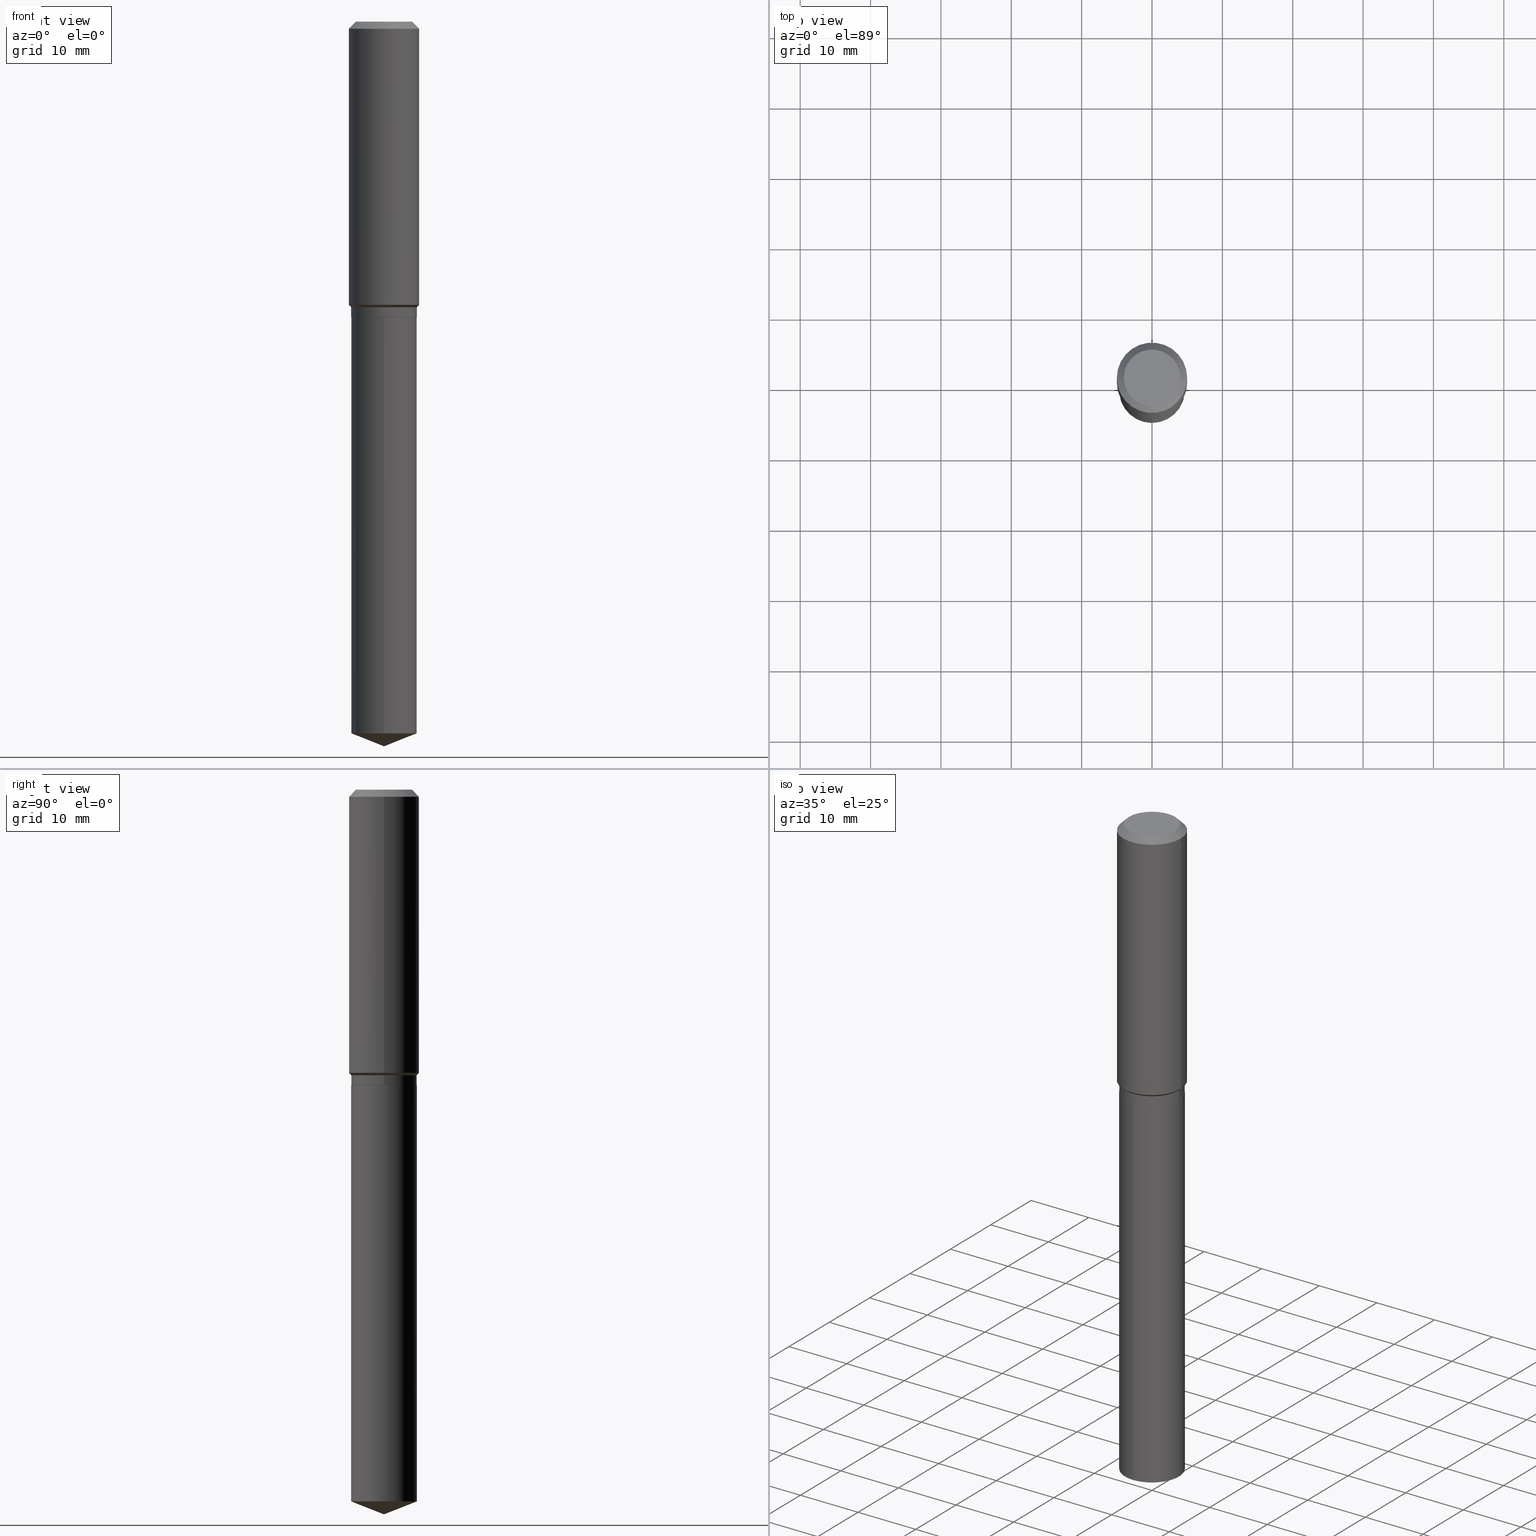
[diagram: canonical four-view strip — front | top / right | iso, engineering-drawing reading convention]
A machine part, canonical four-view strip (front | top / right | iso — engineering-drawing reading convention). The complete STEP part file that produces these views, byte-faithful:
ISO-10303-21;
HEADER;
FILE_DESCRIPTION (( 'STEP AP203' ),
    '1' );
FILE_NAME ('56456.STEP',
    '2024-04-24T18:03:00',
    ( '' ),
    ( '' ),
    'SwSTEP 2.0',
    'SolidWorks 2023',
    '' );
FILE_SCHEMA (( 'CONFIG_CONTROL_DESIGN' ));
ENDSEC;

DATA;
#1 = EDGE_CURVE ( 'NONE', #282, #129, #23, .T. ) ;
#2 = DIRECTION ( 'NONE',  ( -2.445540233102860963E-29, 3.491379051431596489E-15, 1.000000000000000000 ) ) ;
#3 = DATE_AND_TIME ( #38, #218 ) ;
#4 = ORIENTED_EDGE ( 'NONE', *, *, #40, .T. ) ;
#5 = CALENDAR_DATE ( 2024, 24, 4 ) ;
#6 = DIRECTION ( 'NONE',  ( 0.7071067811864267805, -2.468850131080992517E-15, 0.7071067811866682540 ) ) ;
#7 = ADVANCED_FACE ( 'NONE', ( #436 ), #93, .T. ) ;
#8 = APPROVAL_PERSON_ORGANIZATION ( #270, #70, #416 ) ;
#9 = AXIS2_PLACEMENT_3D ( 'NONE', #470, #204, #89 ) ;
#10 = DIRECTION ( 'NONE',  ( 1.000000000000000000, -6.982962677686265922E-15, 4.876176775795935793E-29 ) ) ;
#11 = ORIENTED_EDGE ( 'NONE', *, *, #63, .F. ) ;
#12 = LINE ( 'NONE', #229, #51 ) ;
#13 = APPLICATION_CONTEXT ( 'configuration controlled 3d designs of mechanical parts and assemblies' ) ;
#14 = DIRECTION ( 'NONE',  ( -2.445468806185136597E-29, 3.491481338843145583E-15, 1.000000000000000000 ) ) ;
#15 = COORDINATED_UNIVERSAL_TIME_OFFSET ( 5, 0, .BEHIND. ) ;
#16 = CC_DESIGN_DATE_AND_TIME_ASSIGNMENT ( #152, #299, ( #172 ) ) ;
#17 = DIRECTION ( 'NONE',  ( -6.982962677686265133E-15, -1.000000000000000000, 2.969399993113329585E-15 ) ) ;
#18 = ORIENTED_EDGE ( 'NONE', *, *, #304, .F. ) ;
#19 = CARTESIAN_POINT ( 'NONE',  ( 3.875945784363131396E-29, -5.533823347999442283E-15, -1.584949999999999637 ) ) ;
#20 = VERTEX_POINT ( 'NONE', #406 ) ;
#21 = LINE ( 'NONE', #207, #214 ) ;
#22 = ADVANCED_FACE ( 'NONE', ( #294 ), #368, .T. ) ;
#23 = LINE ( 'NONE', #134, #401 ) ;
#24 =( GEOMETRIC_REPRESENTATION_CONTEXT ( 3 ) GLOBAL_UNCERTAINTY_ASSIGNED_CONTEXT ( ( #250 ) ) GLOBAL_UNIT_ASSIGNED_CONTEXT ( ( #255, #222, #61 ) ) REPRESENTATION_CONTEXT ( 'NONE', 'WORKASPACE' ) );
#25 = CIRCLE ( 'NONE', #354, 0.1839999999999999969 ) ;
#26 = DIRECTION ( 'NONE',  ( 1.000000000000000000, -6.982962677686264344E-15, 0.000000000000000000 ) ) ;
#27 = EDGE_LOOP ( 'NONE', ( #205, #427 ) ) ;
#28 = CARTESIAN_POINT ( 'NONE',  ( 0.1574800000000000089, -1.284169937930321189E-15, 3.855188123724205385E-18 ) ) ;
#29 = EDGE_CURVE ( 'NONE', #346, #282, #453, .T. ) ;
#30 = ORIENTED_EDGE ( 'NONE', *, *, #452, .F. ) ;
#31 = LINE ( 'NONE', #489, #67 ) ;
#32 = CIRCLE ( 'NONE', #450, 0.1968500000000002192 ) ;
#33 = CARTESIAN_POINT ( 'NONE',  ( 0.1834999999999999964, -7.054188896998686144E-15, -1.653399999999999981 ) ) ;
#34 = DIRECTION ( 'NONE',  ( 1.000000000000000000, -6.982962677686264344E-15, 0.000000000000000000 ) ) ;
#35 = ADVANCED_FACE ( 'NONE', ( #256 ), #227, .T. ) ;
#36 = PRODUCT_RELATED_PRODUCT_CATEGORY ( 'detail', '', ( #197 ) ) ;
#37 = CARTESIAN_POINT ( 'NONE',  ( -0.1968500000000000250, -1.436938108811090750E-15, -0.03937000000000029365 ) ) ;
#38 = CALENDAR_DATE ( 2024, 24, 4 ) ;
#39 = DIRECTION ( 'NONE',  ( 6.611014441532057911E-15, 0.9304175679820259059, 0.3665012267242938049 ) ) ;
#40 = EDGE_CURVE ( 'NONE', #112, #20, #411, .T. ) ;
#41 = PERSON_AND_ORGANIZATION ( #402, #474 ) ;
#42 = DIRECTION ( 'NONE',  ( -6.982962677686265133E-15, -1.000000000000000000, 2.969399993113329585E-15 ) ) ;
#43 = ORIENTED_EDGE ( 'NONE', *, *, #331, .T. ) ;
#44 = PERSON_AND_ORGANIZATION ( #402, #474 ) ;
#45 = PLANE ( 'NONE',  #370 ) ;
#46 = ORIENTED_EDGE ( 'NONE', *, *, #261, .F. ) ;
#47 = AXIS2_PLACEMENT_3D ( 'NONE', #286, #167, #390 ) ;
#48 = DIRECTION ( 'NONE',  ( -2.445468806185136597E-29, 3.491481338843145583E-15, 1.000000000000000000 ) ) ;
#49 = CYLINDRICAL_SURFACE ( 'NONE', #9, 0.1839999999999999969 ) ;
#50 = AXIS2_PLACEMENT_3D ( 'NONE', #147, #64, #144 ) ;
#51 = VECTOR ( 'NONE', #296, 39.37007874015748143 ) ;
#52 = DIRECTION ( 'NONE',  ( -2.445540233102860963E-29, 3.491379051431596489E-15, 1.000000000000000000 ) ) ;
#53 = VERTEX_POINT ( 'NONE', #187 ) ;
#54 = ADVANCED_FACE ( 'NONE', ( #253 ), #487, .T. ) ;
#55 = CARTESIAN_POINT ( 'NONE',  ( 1.307398633798681744E-15, 0.1839999999999941960, -1.653400000000000203 ) ) ;
#56 = ORIENTED_EDGE ( 'NONE', *, *, #146, .T. ) ;
#57 = CARTESIAN_POINT ( 'NONE',  ( 4.042115389743411055E-29, -5.771069504973833690E-15, -1.652899999999999814 ) ) ;
#58 = CARTESIAN_POINT ( 'NONE',  ( 3.907370058522611013E-29, -5.578688883203577685E-15, -1.597799999999999887 ) ) ;
#59 = EDGE_LOOP ( 'NONE', ( #84, #190, #236 ) ) ;
#60 = DESIGN_CONTEXT ( 'detailed design', #306, 'design' ) ;
#61 =( NAMED_UNIT ( * ) SI_UNIT ( $, .STERADIAN. ) SOLID_ANGLE_UNIT ( ) );
#62 = ORIENTED_EDGE ( 'NONE', *, *, #137, .T. ) ;
#63 = EDGE_CURVE ( 'NONE', #419, #100, #105, .T. ) ;
#64 = DIRECTION ( 'NONE',  ( -2.445468806185136597E-29, 3.491481338843145583E-15, 1.000000000000000000 ) ) ;
#65 = CARTESIAN_POINT ( 'NONE',  ( -1.284865132694232346E-15, -0.1840000000000057701, -1.653399999999999093 ) ) ;
#66 = CIRCLE ( 'NONE', #342, 0.1574800000000000089 ) ;
#67 = VECTOR ( 'NONE', #71, 39.37007874015748143 ) ;
#68 = FACE_OUTER_BOUND ( 'NONE', #216, .T. ) ;
#69 = AXIS2_PLACEMENT_3D ( 'NONE', #386, #153, #42 ) ;
#70 = APPROVAL ( #267, 'UNSPECIFIED' ) ;
#71 = DIRECTION ( 'NONE',  ( 0.7071067811865503483, -2.468850131082286248E-15, 0.7071067811865446862 ) ) ;
#72 = ORIENTED_EDGE ( 'NONE', *, *, #198, .F. ) ;
#73 = CALENDAR_DATE ( 2024, 24, 4 ) ;
#74 = CARTESIAN_POINT ( 'NONE',  ( 9.627810689950954155E-31, -1.374596203102556547E-16, -0.03937000000000029365 ) ) ;
#75 = CIRCLE ( 'NONE', #69, 0.1839999999999999969 ) ;
#76 = APPROVAL_DATE_TIME ( #420, #477 ) ;
#77 = DIRECTION ( 'NONE',  ( -2.445468806185136597E-29, 3.491481338843145583E-15, 1.000000000000000000 ) ) ;
#78 = PERSON_AND_ORGANIZATION_ROLE ( 'creator' ) ;
#79 = DIRECTION ( 'NONE',  ( -6.982962677686265922E-15, -1.000000000000000000, 3.498627837350040510E-15 ) ) ;
#80 = AXIS2_PLACEMENT_3D ( 'NONE', #347, #14, #466 ) ;
#81 = ADVANCED_FACE ( 'NONE', ( #68 ), #332, .F. ) ;
#82 = VERTEX_POINT ( 'NONE', #417 ) ;
#83 = CARTESIAN_POINT ( 'NONE',  ( -0.1839999999999999969, -4.271290249404992971E-15, -1.597799999999999887 ) ) ;
#84 = ORIENTED_EDGE ( 'NONE', *, *, #297, .F. ) ;
#85 = CARTESIAN_POINT ( 'NONE',  ( 3.875945784363131396E-29, -5.533823347999442283E-15, -1.584949999999999637 ) ) ;
#86 = ORIENTED_EDGE ( 'NONE', *, *, #137, .F. ) ;
#87 = ADVANCED_FACE ( 'NONE', ( #142 ), #384, .T. ) ;
#88 = AXIS2_PLACEMENT_3D ( 'NONE', #189, #2, #79 ) ;
#89 = DIRECTION ( 'NONE',  ( 1.000000000000000000, -6.982962677686267499E-15, 4.876176775795935793E-29 ) ) ;
#90 = ORIENTED_EDGE ( 'NONE', *, *, #235, .F. ) ;
#91 = ORIENTED_EDGE ( 'NONE', *, *, #307, .T. ) ;
#92 = CARTESIAN_POINT ( 'NONE',  ( 9.627810689950954155E-31, -1.374596203102556547E-16, -0.03937000000000029365 ) ) ;
#93 = CYLINDRICAL_SURFACE ( 'NONE', #258, 0.1839999999999999969 ) ;
#94 = LINE ( 'NONE', #170, #96 ) ;
#95 = VECTOR ( 'NONE', #217, 39.37007874015748143 ) ;
#96 = VECTOR ( 'NONE', #394, 39.37007874015748143 ) ;
#97 = DIRECTION ( 'NONE',  ( -2.445468806185136597E-29, 3.491481338843145583E-15, 1.000000000000000000 ) ) ;
#98 = ORIENTED_EDGE ( 'NONE', *, *, #244, .F. ) ;
#99 = APPROVAL ( #196, 'UNSPECIFIED' ) ;
#100 = VERTEX_POINT ( 'NONE', #221 ) ;
#101 = DIRECTION ( 'NONE',  ( 1.000000000000000000, -6.982962677686265922E-15, 0.000000000000000000 ) ) ;
#102 = DIRECTION ( 'NONE',  ( -2.445468806185136597E-29, 3.491481338843145583E-15, 1.000000000000000000 ) ) ;
#103 = EDGE_LOOP ( 'NONE', ( #90, #454, #56, #441 ) ) ;
#104 = DIRECTION ( 'NONE',  ( -2.445468806185136597E-29, 3.491481338843145583E-15, 1.000000000000000000 ) ) ;
#105 = LINE ( 'NONE', #183, #95 ) ;
#106 = ADVANCED_FACE ( 'NONE', ( #414 ), #225, .T. ) ;
#107 = VECTOR ( 'NONE', #6, 39.37007874015748143 ) ;
#108 = DIRECTION ( 'NONE',  ( 1.000000000000000000, -6.982962677686265922E-15, 4.876223630392693006E-29 ) ) ;
#109 = CARTESIAN_POINT ( 'NONE',  ( -9.427742298522567634E-47, 1.346031739168368355E-32, 3.855188123715870730E-18 ) ) ;
#110 = VERTEX_POINT ( 'NONE', #33 ) ;
#111 = CARTESIAN_POINT ( 'NONE',  ( 4.042115389743411055E-29, -5.771069504973833690E-15, -1.652899999999999814 ) ) ;
#112 = VERTEX_POINT ( 'NONE', #140 ) ;
#113 = PERSON_AND_ORGANIZATION ( #402, #474 ) ;
#114 = APPLICATION_PROTOCOL_DEFINITION ( 'international standard', 'config_control_design', 1994, #306 ) ;
#115 = LINE ( 'NONE', #379, #107 ) ;
#116 = ORIENTED_EDGE ( 'NONE', *, *, #415, .T. ) ;
#117 = ADVANCED_FACE ( 'NONE', ( #143 ), #292, .T. ) ;
#118 = EDGE_CURVE ( 'NONE', #200, #251, #31, .T. ) ;
#119 = DIRECTION ( 'NONE',  ( -2.445468806185136597E-29, 3.491481338843145583E-15, 1.000000000000000000 ) ) ;
#120 = ORIENTED_EDGE ( 'NONE', *, *, #405, .F. ) ;
#121 = CLOSED_SHELL ( 'NONE', ( #22, #392, #117, #444, #348, #387, #429, #54, #106, #314, #275, #212 ) ) ;
#122 = CONICAL_SURFACE ( 'NONE', #309, 0.1968500000000000250, 0.7853981633974447263 ) ;
#123 = FACE_OUTER_BOUND ( 'NONE', #27, .T. ) ;
#124 = DATE_TIME_ROLE ( 'creation_date' ) ;
#125 = DIRECTION ( 'NONE',  ( -2.445468806185136877E-29, 3.491481338843145188E-15, 1.000000000000000000 ) ) ;
#126 = VERTEX_POINT ( 'NONE', #37 ) ;
#127 = FACE_OUTER_BOUND ( 'NONE', #103, .T. ) ;
#128 = DATE_AND_TIME ( #408, #374 ) ;
#129 = VERTEX_POINT ( 'NONE', #65 ) ;
#130 = AXIS2_PLACEMENT_3D ( 'NONE', #265, #102, #372 ) ;
#131 = AXIS2_PLACEMENT_3D ( 'NONE', #164, #245, #399 ) ;
#132 = CIRCLE ( 'NONE', #161, 0.1834999999999999964 ) ;
#133 = DIRECTION ( 'NONE',  ( 1.000000000000000000, -6.982962677686267499E-15, 4.876176775795935793E-29 ) ) ;
#134 = CARTESIAN_POINT ( 'NONE',  ( -1.284865132694232346E-15, -0.1840000000000057701, -1.653399999999999093 ) ) ;
#135 = DIRECTION ( 'NONE',  ( -2.445468806185136597E-29, 3.491481338843145583E-15, 1.000000000000000000 ) ) ;
#136 = ORIENTED_EDGE ( 'NONE', *, *, #364, .F. ) ;
#137 = EDGE_CURVE ( 'NONE', #359, #419, #66, .T. ) ;
#138 = DIRECTION ( 'NONE',  ( -2.445468806185136597E-29, 3.491481338843145583E-15, 1.000000000000000000 ) ) ;
#139 = CIRCLE ( 'NONE', #206, 0.1968500000000000250 ) ;
#140 = CARTESIAN_POINT ( 'NONE',  ( 0.1839999999999999969, -7.055934637668106859E-15, -1.652899999999999814 ) ) ;
#141 = ORIENTED_EDGE ( 'NONE', *, *, #252, .F. ) ;
#142 = FACE_OUTER_BOUND ( 'NONE', #59, .T. ) ;
#143 = FACE_OUTER_BOUND ( 'NONE', #319, .T. ) ;
#144 = DIRECTION ( 'NONE',  ( 1.000000000000000000, -6.982962677686265922E-15, 0.000000000000000000 ) ) ;
#145 = CARTESIAN_POINT ( 'NONE',  ( 0.1839999999999999969, -1.284865132694273169E-15, 8.972165267464521691E-30 ) ) ;
#146 = EDGE_CURVE ( 'NONE', #112, #200, #260, .T. ) ;
#147 = CARTESIAN_POINT ( 'NONE',  ( 9.627810689950954155E-31, -1.374596203102556547E-16, -0.03937000000000029365 ) ) ;
#148 = DIRECTION ( 'NONE',  ( -6.982962677686265133E-15, -1.000000000000000000, 2.969399993113329585E-15 ) ) ;
#149 = PERSON_AND_ORGANIZATION ( #402, #474 ) ;
#150 = CARTESIAN_POINT ( 'NONE',  ( 9.627810689950954155E-31, -1.374596203102556547E-16, -0.03937000000000029365 ) ) ;
#151 = ORIENTED_EDGE ( 'NONE', *, *, #176, .F. ) ;
#152 = DATE_AND_TIME ( #5, #360 ) ;
#153 = DIRECTION ( 'NONE',  ( -2.445540233102860963E-29, 3.491379051431596489E-15, 1.000000000000000000 ) ) ;
#154 = AXIS2_PLACEMENT_3D ( 'NONE', #74, #326, #482 ) ;
#155 = AXIS2_PLACEMENT_3D ( 'NONE', #19, #97, #280 ) ;
#156 = CARTESIAN_POINT ( 'NONE',  ( -1.284865132694176140E-15, -0.1840000000000139302, -3.982520472486849705 ) ) ;
#157 = ADVANCED_FACE ( 'NONE', ( #224 ), #219, .T. ) ;
#158 = DIRECTION ( 'NONE',  ( 1.000000000000000000, -6.982962677686264344E-15, 0.000000000000000000 ) ) ;
#159 = CC_DESIGN_SECURITY_CLASSIFICATION ( #172, ( #257 ) ) ;
#160 = EDGE_LOOP ( 'NONE', ( #141, #284, #432, #72 ) ) ;
#161 = AXIS2_PLACEMENT_3D ( 'NONE', #193, #77, #350 ) ;
#162 = COORDINATED_UNIVERSAL_TIME_OFFSET ( 5, 0, .BEHIND. ) ;
#163 = EDGE_CURVE ( 'NONE', #282, #263, #75, .T. ) ;
#164 = CARTESIAN_POINT ( 'NONE',  ( 9.739295947356642418E-29, -1.390465767154430748E-14, -3.982520472486850593 ) ) ;
#165 = EDGE_LOOP ( 'NONE', ( #380, #116, #186, #362 ) ) ;
#166 = MANIFOLD_SOLID_BREP ( 'Body-Move/Copy2[2]', #121 ) ;
#167 = DIRECTION ( 'NONE',  ( -2.445468806185136597E-29, 3.491481338843145583E-15, 1.000000000000000000 ) ) ;
#168 = ORIENTED_EDGE ( 'NONE', *, *, #118, .F. ) ;
#169 = EDGE_LOOP ( 'NONE', ( #4, #303, #151, #298 ) ) ;
#170 = CARTESIAN_POINT ( 'NONE',  ( 0.1968500000000001082, -1.374596203102542397E-15, 9.598753983154305062E-30 ) ) ;
#171 = ORIENTED_EDGE ( 'NONE', *, *, #182, .T. ) ;
#172 = SECURITY_CLASSIFICATION ( '', '', #228 ) ;
#173 = AXIS2_PLACEMENT_3D ( 'NONE', #209, #138, #133 ) ;
#174 = DIRECTION ( 'NONE',  ( 2.438088387897960049E-29, -3.491481338843145188E-15, -1.000000000000000000 ) ) ;
#175 = EDGE_LOOP ( 'NONE', ( #46, #366, #315, #30 ) ) ;
#176 = EDGE_CURVE ( 'NONE', #200, #82, #25, .T. ) ;
#177 = DIRECTION ( 'NONE',  ( -2.445468806185136597E-29, 3.491481338843145583E-15, 1.000000000000000000 ) ) ;
#178 = DIRECTION ( 'NONE',  ( 6.982962677686265922E-15, 1.000000000000000000, -3.491379051431596884E-15 ) ) ;
#179 = CC_DESIGN_APPROVAL ( #70, ( #418 ) ) ;
#180 = AXIS2_PLACEMENT_3D ( 'NONE', #111, #443, #34 ) ;
#181 = AXIS2_PLACEMENT_3D ( 'NONE', #430, #135, #317 ) ;
#182 = EDGE_CURVE ( 'NONE', #110, #112, #115, .T. ) ;
#183 = CARTESIAN_POINT ( 'NONE',  ( 0.1968500000000000250, -1.487948651171581601E-15, -0.03937000000000029365 ) ) ;
#184 = APPLICATION_PROTOCOL_DEFINITION ( 'international standard', 'config_control_design', 1994, #13 ) ;
#185 = DIRECTION ( 'NONE',  ( -2.445468806185136597E-29, 3.491481338843145583E-15, 1.000000000000000000 ) ) ;
#186 = ORIENTED_EDGE ( 'NONE', *, *, #1, .T. ) ;
#187 = CARTESIAN_POINT ( 'NONE',  ( -0.1834999999999999964, -4.466320098349360965E-15, -1.653399999999999981 ) ) ;
#188 = CIRCLE ( 'NONE', #425, 0.1574800000000000089 ) ;
#189 = CARTESIAN_POINT ( 'NONE',  ( -8.636456399151639523E-28, 1.232981569910369115E-13, 35.31507874015748172 ) ) ;
#190 = ORIENTED_EDGE ( 'NONE', *, *, #29, .T. ) ;
#191 = CC_DESIGN_PERSON_AND_ORGANIZATION_ASSIGNMENT ( #376, #78, ( #418 ) ) ;
#192 = CC_DESIGN_PERSON_AND_ORGANIZATION_ASSIGNMENT ( #340, #456, ( #257 ) ) ;
#193 = CARTESIAN_POINT ( 'NONE',  ( 4.043338124146504977E-29, -5.772815245643255982E-15, -1.653399999999999981 ) ) ;
#194 = COORDINATED_UNIVERSAL_TIME_OFFSET ( 5, 0, .BEHIND. ) ;
#195 = APPROVAL_PERSON_ORGANIZATION ( #149, #477, #310 ) ;
#196 = APPROVAL_STATUS ( 'not_yet_approved' ) ;
#197 = PRODUCT ( '56456', '56456', '', ( #338 ) ) ;
#198 = EDGE_CURVE ( 'NONE', #359, #126, #201, .T. ) ;
#199 = AXIS2_PLACEMENT_3D ( 'NONE', #247, #177, #400 ) ;
#200 = VERTEX_POINT ( 'NONE', #271 ) ;
#201 = LINE ( 'NONE', #237, #268 ) ;
#202 = FACE_OUTER_BOUND ( 'NONE', #403, .T. ) ;
#203 = EDGE_CURVE ( 'NONE', #110, #53, #132, .T. ) ;
#204 = DIRECTION ( 'NONE',  ( -2.445468806185136597E-29, 3.491481338843145583E-15, 1.000000000000000000 ) ) ;
#205 = ORIENTED_EDGE ( 'NONE', *, *, #203, .F. ) ;
#206 = AXIS2_PLACEMENT_3D ( 'NONE', #150, #463, #320 ) ;
#207 = CARTESIAN_POINT ( 'NONE',  ( 1.307398633798624552E-15, 0.1839999999999942237, -1.653400000000000203 ) ) ;
#208 = EDGE_LOOP ( 'NONE', ( #232, #481, #355 ) ) ;
#209 = CARTESIAN_POINT ( 'NONE',  ( 0.000000000000000000, 0.000000000000000000, 0.000000000000000000 ) ) ;
#210 = ORIENTED_EDGE ( 'NONE', *, *, #163, .T. ) ;
#211 = CARTESIAN_POINT ( 'NONE',  ( -4.713871149261283817E-47, 6.730158695841841775E-33, 1.927594061857935365E-18 ) ) ;
#212 = ADVANCED_FACE ( 'NONE', ( #202 ), #465, .T. ) ;
#213 = ORIENTED_EDGE ( 'NONE', *, *, #261, .T. ) ;
#214 = VECTOR ( 'NONE', #239, 39.37007874015748143 ) ;
#215 = DIRECTION ( 'NONE',  ( -2.445468806185136597E-29, 3.491481338843145583E-15, 1.000000000000000000 ) ) ;
#216 = EDGE_LOOP ( 'NONE', ( #321, #254 ) ) ;
#217 = DIRECTION ( 'NONE',  ( 0.7071067811865450192, -7.319954787623246579E-15, -0.7071067811865500152 ) ) ;
#218 = LOCAL_TIME ( 14, 3, 0.000000000000000000, #276 ) ;
#219 = CONICAL_SURFACE ( 'NONE', #88, 99.94676754583893796, 1.195550537616115960 ) ;
#220 = LENGTH_MEASURE_WITH_UNIT ( LENGTH_MEASURE( 0.02539999999999999897 ), #486 );
#221 = CARTESIAN_POINT ( 'NONE',  ( 0.1968500000000000250, -1.512055823412797189E-15, -0.03937000000000029365 ) ) ;
#222 =( NAMED_UNIT ( * ) PLANE_ANGLE_UNIT ( ) SI_UNIT ( $, .RADIAN. ) );
#223 = DIRECTION ( 'NONE',  ( -6.497071151882111159E-15, -0.9304175679820232414, 0.3665012267243003552 ) ) ;
#224 = FACE_OUTER_BOUND ( 'NONE', #208, .T. ) ;
#225 = CONICAL_SURFACE ( 'NONE', #154, 0.1968500000000000250, 0.7853981633974447263 ) ;
#226 = APPROVAL_DATE_TIME ( #423, #70 ) ;
#227 = CYLINDRICAL_SURFACE ( 'NONE', #440, 0.1839999999999999969 ) ;
#228 = SECURITY_CLASSIFICATION_LEVEL ( 'unclassified' ) ;
#229 = CARTESIAN_POINT ( 'NONE',  ( -0.1839999999999999969, 1.307398633798584320E-15, -9.050840566069027961E-30 ) ) ;
#230 = APPROVAL_STATUS ( 'not_yet_approved' ) ;
#231 = DIRECTION ( 'NONE',  ( -0.7071067811865503483, 7.493145998870363626E-15, 0.7071067811865446862 ) ) ;
#232 = ORIENTED_EDGE ( 'NONE', *, *, #29, .F. ) ;
#233 = VECTOR ( 'NONE', #223, 39.37007874015748854 ) ;
#234 = CIRCLE ( 'NONE', #50, 0.1968500000000000250 ) ;
#235 = EDGE_CURVE ( 'NONE', #20, #82, #12, .T. ) ;
#236 = ORIENTED_EDGE ( 'NONE', *, *, #415, .F. ) ;
#237 = CARTESIAN_POINT ( 'NONE',  ( -0.1968500000000000250, 1.237136582792286225E-15, -0.03937000000000029365 ) ) ;
#238 = ORIENTED_EDGE ( 'NONE', *, *, #452, .T. ) ;
#239 = DIRECTION ( 'NONE',  ( -2.445540233102860683E-29, 3.491379051431596884E-15, 1.000000000000000000 ) ) ;
#240 = ORIENTED_EDGE ( 'NONE', *, *, #364, .T. ) ;
#241 = CARTESIAN_POINT ( 'NONE',  ( -0.1574800000000000089, 1.168406772637159618E-15, 3.855188123707939751E-18 ) ) ;
#242 = SHAPE_DEFINITION_REPRESENTATION ( #462, #455 ) ;
#243 = ORIENTED_EDGE ( 'NONE', *, *, #40, .F. ) ;
#244 = EDGE_CURVE ( 'NONE', #129, #369, #385, .T. ) ;
#245 = DIRECTION ( 'NONE',  ( -2.445540233102860963E-29, 3.491379051431596489E-15, 1.000000000000000000 ) ) ;
#246 = CARTESIAN_POINT ( 'NONE',  ( 4.043338124146503856E-29, -5.772815245643255193E-15, -1.653399999999999537 ) ) ;
#247 = CARTESIAN_POINT ( 'NONE',  ( 3.907370058522611013E-29, -5.578688883203577685E-15, -1.597799999999999887 ) ) ;
#248 = ORIENTED_EDGE ( 'NONE', *, *, #331, .F. ) ;
#249 = AXIS2_PLACEMENT_3D ( 'NONE', #341, #302, #308 ) ;
#250 = UNCERTAINTY_MEASURE_WITH_UNIT (LENGTH_MEASURE( 1.000000000000000082E-05 ), #255, 'distance_accuracy_value', 'NONE');
#251 = VERTEX_POINT ( 'NONE', #428 ) ;
#252 = EDGE_CURVE ( 'NONE', #419, #359, #188, .T. ) ;
#253 = FACE_OUTER_BOUND ( 'NONE', #336, .T. ) ;
#254 = ORIENTED_EDGE ( 'NONE', *, *, #325, .T. ) ;
#255 =( CONVERSION_BASED_UNIT ( 'INCH', #220 ) LENGTH_UNIT ( ) NAMED_UNIT ( #388 ) );
#256 = FACE_OUTER_BOUND ( 'NONE', #287, .T. ) ;
#257 = PRODUCT_DEFINITION_FORMATION_WITH_SPECIFIED_SOURCE ( 'ANY', '', #197, .NOT_KNOWN. ) ;
#258 = AXIS2_PLACEMENT_3D ( 'NONE', #246, #373, #329 ) ;
#259 = AXIS2_PLACEMENT_3D ( 'NONE', #58, #215, #277 ) ;
#260 = LINE ( 'NONE', #145, #273 ) ;
#261 = EDGE_CURVE ( 'NONE', #82, #383, #460, .T. ) ;
#262 = DIRECTION ( 'NONE',  ( -2.445468806185136597E-29, 3.491481338843145583E-15, 1.000000000000000000 ) ) ;
#263 = VERTEX_POINT ( 'NONE', #382 ) ;
#264 = PERSON_AND_ORGANIZATION ( #402, #474 ) ;
#265 = CARTESIAN_POINT ( 'NONE',  ( 0.000000000000000000, 0.000000000000000000, 0.000000000000000000 ) ) ;
#266 = ORIENTED_EDGE ( 'NONE', *, *, #176, .T. ) ;
#267 = APPROVAL_STATUS ( 'not_yet_approved' ) ;
#268 = VECTOR ( 'NONE', #421, 39.37007874015748143 ) ;
#269 = CARTESIAN_POINT ( 'NONE',  ( 3.907370058522611013E-29, -5.578688883203577685E-15, -1.597799999999999887 ) ) ;
#270 = PERSON_AND_ORGANIZATION ( #402, #474 ) ;
#271 = CARTESIAN_POINT ( 'NONE',  ( 0.1839999999999999969, -6.863554015897850066E-15, -1.597799999999999887 ) ) ;
#272 = DIRECTION ( 'NONE',  ( 1.000000000000000000, -6.982962677686265922E-15, 4.876223630392693006E-29 ) ) ;
#273 = VECTOR ( 'NONE', #451, 39.37007874015748143 ) ;
#274 = DIRECTION ( 'NONE',  ( -2.438088387897960049E-29, 3.491481338843145188E-15, 1.000000000000000000 ) ) ;
#275 = ADVANCED_FACE ( 'NONE', ( #123 ), #45, .F. ) ;
#276 = COORDINATED_UNIVERSAL_TIME_OFFSET ( 5, 0, .BEHIND. ) ;
#277 = DIRECTION ( 'NONE',  ( 1.000000000000000000, -6.982962677686264344E-15, 0.000000000000000000 ) ) ;
#278 = ORIENTED_EDGE ( 'NONE', *, *, #252, .T. ) ;
#279 = LOCAL_TIME ( 14, 3, 0.000000000000000000, #381 ) ;
#280 = DIRECTION ( 'NONE',  ( 1.000000000000000000, -6.982962677686265922E-15, 0.000000000000000000 ) ) ;
#281 = AXIS2_PLACEMENT_3D ( 'NONE', #288, #290, #449 ) ;
#282 = VERTEX_POINT ( 'NONE', #156 ) ;
#283 = DIRECTION ( 'NONE',  ( -1.000000000000000000, 6.982962677686265922E-15, 0.000000000000000000 ) ) ;
#284 = ORIENTED_EDGE ( 'NONE', *, *, #63, .T. ) ;
#285 = FACE_OUTER_BOUND ( 'NONE', #160, .T. ) ;
#286 = CARTESIAN_POINT ( 'NONE',  ( 4.043338124146504977E-29, -5.772815245643255982E-15, -1.653399999999999981 ) ) ;
#287 = EDGE_LOOP ( 'NONE', ( #210, #91, #98, #445 ) ) ;
#288 = CARTESIAN_POINT ( 'NONE',  ( 0.000000000000000000, 0.000000000000000000, 0.000000000000000000 ) ) ;
#289 = DIRECTION ( 'NONE',  ( 2.445540233102860402E-29, -3.491379051431596884E-15, -1.000000000000000000 ) ) ;
#290 = DIRECTION ( 'NONE',  ( -2.445468806185136597E-29, 3.491481338843145583E-15, 1.000000000000000000 ) ) ;
#291 = AXIS2_PLACEMENT_3D ( 'NONE', #211, #174, #363 ) ;
#292 = CYLINDRICAL_SURFACE ( 'NONE', #281, 0.1968500000000001082 ) ;
#293 = DIRECTION ( 'NONE',  ( 0.000000000000000000, 0.000000000000000000, 1.000000000000000000 ) ) ;
#294 = FACE_OUTER_BOUND ( 'NONE', #357, .T. ) ;
#295 = CALENDAR_DATE ( 2024, 24, 4 ) ;
#296 = DIRECTION ( 'NONE',  ( -2.445468806185136877E-29, 3.491481338843145188E-15, 1.000000000000000000 ) ) ;
#297 = EDGE_CURVE ( 'NONE', #346, #263, #301, .T. ) ;
#298 = ORIENTED_EDGE ( 'NONE', *, *, #146, .F. ) ;
#299 = DATE_TIME_ROLE ( 'classification_date' ) ;
#300 = CONICAL_SURFACE ( 'NONE', #259, 0.1839999999999999969, 0.7853981633974522758 ) ;
#301 = LINE ( 'NONE', #339, #472 ) ;
#302 = DIRECTION ( 'NONE',  ( -2.445540233102860963E-29, 3.491379051431596489E-15, 1.000000000000000000 ) ) ;
#303 = ORIENTED_EDGE ( 'NONE', *, *, #235, .T. ) ;
#304 = EDGE_CURVE ( 'NONE', #100, #126, #139, .T. ) ;
#305 = LOCAL_TIME ( 14, 3, 0.000000000000000000, #162 ) ;
#306 = APPLICATION_CONTEXT ( 'configuration controlled 3d designs of mechanical parts and assemblies' ) ;
#307 = EDGE_CURVE ( 'NONE', #263, #369, #21, .T. ) ;
#308 = DIRECTION ( 'NONE',  ( -6.982962677686265133E-15, -1.000000000000000000, 2.969399993113329585E-15 ) ) ;
#309 = AXIS2_PLACEMENT_3D ( 'NONE', #92, #358, #283 ) ;
#310 = APPROVAL_ROLE ( '' ) ;
#311 = PLANE ( 'NONE',  #291 ) ;
#312 = ORIENTED_EDGE ( 'NONE', *, *, #424, .F. ) ;
#313 = FACE_OUTER_BOUND ( 'NONE', #169, .T. ) ;
#314 = ADVANCED_FACE ( 'NONE', ( #433 ), #311, .F. ) ;
#315 = ORIENTED_EDGE ( 'NONE', *, *, #118, .T. ) ;
#316 = ORIENTED_EDGE ( 'NONE', *, *, #322, .F. ) ;
#317 = DIRECTION ( 'NONE',  ( 1.000000000000000000, -6.982962677686264344E-15, 0.000000000000000000 ) ) ;
#318 = AXIS2_PLACEMENT_3D ( 'NONE', #377, #289, #178 ) ;
#319 = EDGE_LOOP ( 'NONE', ( #43, #475, #18, #120 ) ) ;
#320 = DIRECTION ( 'NONE',  ( 1.000000000000000000, -6.982962677686265922E-15, 0.000000000000000000 ) ) ;
#321 = ORIENTED_EDGE ( 'NONE', *, *, #244, .T. ) ;
#322 = EDGE_CURVE ( 'NONE', #383, #126, #356, .T. ) ;
#323 = CARTESIAN_POINT ( 'NONE',  ( -0.1968500000000002192, -4.135119972655683706E-15, -1.584949999999999637 ) ) ;
#324 = DIRECTION ( 'NONE',  ( 1.000000000000000000, 0.000000000000000000, 0.000000000000000000 ) ) ;
#325 = EDGE_CURVE ( 'NONE', #369, #129, #483, .T. ) ;
#326 = DIRECTION ( 'NONE',  ( 2.445468806185136597E-29, -3.491481338843145583E-15, -1.000000000000000000 ) ) ;
#327 = VECTOR ( 'NONE', #231, 39.37007874015748143 ) ;
#328 = MANIFOLD_SOLID_BREP ( 'Body-Move/Copy2[1]', #333 ) ;
#329 = DIRECTION ( 'NONE',  ( -6.982962677686265133E-15, -1.000000000000000000, 2.969399993113329585E-15 ) ) ;
#330 = CARTESIAN_POINT ( 'NONE',  ( -8.636456399151639523E-28, 1.232981569910369115E-13, 35.31507874015748172 ) ) ;
#331 = EDGE_CURVE ( 'NONE', #251, #383, #343, .T. ) ;
#332 = PLANE ( 'NONE',  #318 ) ;
#333 = CLOSED_SHELL ( 'NONE', ( #35, #157, #87, #7, #81 ) ) ;
#334 = CIRCLE ( 'NONE', #131, 0.1839999999999999969 ) ;
#335 = DIRECTION ( 'NONE',  ( -6.982962677686265922E-15, -1.000000000000000000, 3.498627837350040510E-15 ) ) ;
#336 = EDGE_LOOP ( 'NONE', ( #316, #238, #471, #391 ) ) ;
#337 = EDGE_CURVE ( 'NONE', #53, #110, #395, .T. ) ;
#338 = MECHANICAL_CONTEXT ( 'NONE', #13, 'mechanical' ) ;
#339 = CARTESIAN_POINT ( 'NONE',  ( 9.916667716379337497E-29, -1.415754205355512367E-14, -4.054999999999999716 ) ) ;
#340 = PERSON_AND_ORGANIZATION ( #402, #474 ) ;
#341 = CARTESIAN_POINT ( 'NONE',  ( 4.043338124146503856E-29, -5.772815245643255193E-15, -1.653399999999999537 ) ) ;
#342 = AXIS2_PLACEMENT_3D ( 'NONE', #109, #262, #108 ) ;
#343 = CIRCLE ( 'NONE', #155, 0.1968500000000002192 ) ;
#344 = CIRCLE ( 'NONE', #181, 0.1839999999999999969 ) ;
#345 = CARTESIAN_POINT ( 'NONE',  ( 2.324487579557410015E-29, -8.234307056392298500E-15, -1.653399999999999981 ) ) ;
#346 = VERTEX_POINT ( 'NONE', #435 ) ;
#347 = CARTESIAN_POINT ( 'NONE',  ( 4.043338124146504977E-29, -5.772815245643255982E-15, -1.653399999999999981 ) ) ;
#348 = ADVANCED_FACE ( 'NONE', ( #313 ), #49, .T. ) ;
#349 = CC_DESIGN_DATE_AND_TIME_ASSIGNMENT ( #3, #124, ( #418 ) ) ;
#350 = DIRECTION ( 'NONE',  ( 1.000000000000000000, -6.982962677686266711E-15, 0.000000000000000000 ) ) ;
#351 = EDGE_LOOP ( 'NONE', ( #11, #86, #398, #389 ) ) ;
#352 = APPROVAL_ROLE ( '' ) ;
#353 = CYLINDRICAL_SURFACE ( 'NONE', #173, 0.1839999999999999969 ) ;
#354 = AXIS2_PLACEMENT_3D ( 'NONE', #269, #48, #158 ) ;
#355 = ORIENTED_EDGE ( 'NONE', *, *, #163, .F. ) ;
#356 = LINE ( 'NONE', #473, #490 ) ;
#357 = EDGE_LOOP ( 'NONE', ( #461, #240, #243, #422 ) ) ;
#358 = DIRECTION ( 'NONE',  ( 2.445468806185136597E-29, -3.491481338843145583E-15, -1.000000000000000000 ) ) ;
#359 = VERTEX_POINT ( 'NONE', #241 ) ;
#360 = LOCAL_TIME ( 14, 3, 0.000000000000000000, #194 ) ;
#361 = DIRECTION ( 'NONE',  ( -2.445468806185136597E-29, 3.491481338843145583E-15, 1.000000000000000000 ) ) ;
#362 = ORIENTED_EDGE ( 'NONE', *, *, #325, .F. ) ;
#363 = DIRECTION ( 'NONE',  ( -1.000000000000000000, 6.982962677686265922E-15, -4.876176775795935793E-29 ) ) ;
#364 = EDGE_CURVE ( 'NONE', #53, #20, #437, .T. ) ;
#365 = CC_DESIGN_PERSON_AND_ORGANIZATION_ASSIGNMENT ( #41, #467, ( #257 ) ) ;
#366 = ORIENTED_EDGE ( 'NONE', *, *, #407, .T. ) ;
#367 = DIRECTION ( 'NONE',  ( -2.445540233102860963E-29, 3.491379051431596489E-15, 1.000000000000000000 ) ) ;
#368 = CONICAL_SURFACE ( 'NONE', #393, 0.1834999999999999964, 0.7853981633972775267 ) ;
#369 = VERTEX_POINT ( 'NONE', #55 ) ;
#370 = AXIS2_PLACEMENT_3D ( 'NONE', #345, #274, #10 ) ;
#371 = CARTESIAN_POINT ( 'NONE',  ( 4.043338124146503856E-29, -5.772815245643255193E-15, -1.653399999999999537 ) ) ;
#372 = DIRECTION ( 'NONE',  ( 1.000000000000000000, -6.982962677686266711E-15, 4.876176775795935793E-29 ) ) ;
#373 = DIRECTION ( 'NONE',  ( -2.445540233102860963E-29, 3.491379051431596489E-15, 1.000000000000000000 ) ) ;
#374 = LOCAL_TIME ( 14, 3, 0.000000000000000000, #15 ) ;
#375 = VECTOR ( 'NONE', #480, 39.37007874015748143 ) ;
#376 = PERSON_AND_ORGANIZATION ( #402, #474 ) ;
#377 = CARTESIAN_POINT ( 'NONE',  ( 4.043338124146503856E-29, -5.772815245643255193E-15, -1.653399999999999537 ) ) ;
#378 = PERSON_AND_ORGANIZATION_ROLE ( 'classification_officer' ) ;
#379 = CARTESIAN_POINT ( 'NONE',  ( 0.1834999999999999964, -7.054188896998686144E-15, -1.653399999999999981 ) ) ;
#380 = ORIENTED_EDGE ( 'NONE', *, *, #307, .F. ) ;
#381 = COORDINATED_UNIVERSAL_TIME_OFFSET ( 5, 0, .BEHIND. ) ;
#382 = CARTESIAN_POINT ( 'NONE',  ( 1.307398633798681941E-15, 0.1839999999999861746, -3.982520472486851038 ) ) ;
#383 = VERTEX_POINT ( 'NONE', #323 ) ;
#384 = CONICAL_SURFACE ( 'NONE', #457, 99.94676754583893796, 1.195550537616115960 ) ;
#385 = CIRCLE ( 'NONE', #249, 0.1839999999999999969 ) ;
#386 = CARTESIAN_POINT ( 'NONE',  ( 9.739295947356642418E-29, -1.390465767154430748E-14, -3.982520472486850593 ) ) ;
#387 = ADVANCED_FACE ( 'NONE', ( #127 ), #353, .T. ) ;
#388 = DIMENSIONAL_EXPONENTS ( 1.000000000000000000, 0.000000000000000000, 0.000000000000000000, 0.000000000000000000, 0.000000000000000000, 0.000000000000000000, 0.000000000000000000 ) ;
#389 = ORIENTED_EDGE ( 'NONE', *, *, #476, .T. ) ;
#390 = DIRECTION ( 'NONE',  ( 1.000000000000000000, -6.982962677686266711E-15, 0.000000000000000000 ) ) ;
#391 = ORIENTED_EDGE ( 'NONE', *, *, #476, .F. ) ;
#392 = ADVANCED_FACE ( 'NONE', ( #285 ), #122, .T. ) ;
#393 = AXIS2_PLACEMENT_3D ( 'NONE', #484, #185, #446 ) ;
#394 = DIRECTION ( 'NONE',  ( -2.445468806185136877E-29, 3.491481338843145188E-15, 1.000000000000000000 ) ) ;
#395 = CIRCLE ( 'NONE', #47, 0.1834999999999999964 ) ;
#396 = EDGE_LOOP ( 'NONE', ( #266, #213, #248, #168 ) ) ;
#397 = CARTESIAN_POINT ( 'NONE',  ( -0.1834999999999999964, -4.468969325523472955E-15, -1.653399999999999981 ) ) ;
#398 = ORIENTED_EDGE ( 'NONE', *, *, #198, .T. ) ;
#399 = DIRECTION ( 'NONE',  ( -6.982962677686265133E-15, -1.000000000000000000, 2.969399993113329585E-15 ) ) ;
#400 = DIRECTION ( 'NONE',  ( 1.000000000000000000, -6.982962677686264344E-15, 0.000000000000000000 ) ) ;
#401 = VECTOR ( 'NONE', #479, 39.37007874015748143 ) ;
#402 = PERSON ( 'UNSPECIFIED', 'UNSPECIFIED', 'UNSPECIFIED', ('UNSPECIFIED'), ('UNSPECIFIED'), ('UNSPECIFIED') ) ;
#403 = EDGE_LOOP ( 'NONE', ( #136, #434, #171, #312 ) ) ;
#404 = CIRCLE ( 'NONE', #458, 0.1839999999999999969 ) ;
#405 = EDGE_CURVE ( 'NONE', #251, #100, #94, .T. ) ;
#406 = CARTESIAN_POINT ( 'NONE',  ( -0.1839999999999999969, -4.367480560290121368E-15, -1.652899999999999814 ) ) ;
#407 = EDGE_CURVE ( 'NONE', #82, #200, #344, .T. ) ;
#408 = CALENDAR_DATE ( 2024, 24, 4 ) ;
#409 = AXIS2_PLACEMENT_3D ( 'NONE', #447, #293, #324 ) ;
#410 = CARTESIAN_POINT ( 'NONE',  ( 9.916429450700569950E-29, -1.415788029756763374E-14, -4.054999999999999716 ) ) ;
#411 = CIRCLE ( 'NONE', #180, 0.1839999999999999969 ) ;
#412 = CONICAL_SURFACE ( 'NONE', #199, 0.1839999999999999969, 0.7853981633974522758 ) ;
#413 = DIRECTION ( 'NONE',  ( -2.445540233102860963E-29, 3.491379051431596489E-15, 1.000000000000000000 ) ) ;
#414 = FACE_OUTER_BOUND ( 'NONE', #351, .T. ) ;
#415 = EDGE_CURVE ( 'NONE', #263, #282, #334, .T. ) ;
#416 = APPROVAL_ROLE ( '' ) ;
#417 = CARTESIAN_POINT ( 'NONE',  ( -0.1839999999999999969, -4.367480560290121368E-15, -1.597799999999999887 ) ) ;
#418 = PRODUCT_DEFINITION ( 'UNKNOWN', '', #257, #60 ) ;
#419 = VERTEX_POINT ( 'NONE', #28 ) ;
#420 = DATE_AND_TIME ( #295, #279 ) ;
#421 = DIRECTION ( 'NONE',  ( -0.7071067811865450192, 2.468850131082230634E-15, -0.7071067811865500152 ) ) ;
#422 = ORIENTED_EDGE ( 'NONE', *, *, #182, .F. ) ;
#423 = DATE_AND_TIME ( #73, #305 ) ;
#424 = EDGE_CURVE ( 'NONE', #20, #112, #404, .T. ) ;
#425 = AXIS2_PLACEMENT_3D ( 'NONE', #426, #119, #272 ) ;
#426 = CARTESIAN_POINT ( 'NONE',  ( -9.427742298522567634E-47, 1.346031739168368355E-32, 3.855188123715870730E-18 ) ) ;
#427 = ORIENTED_EDGE ( 'NONE', *, *, #337, .F. ) ;
#428 = CARTESIAN_POINT ( 'NONE',  ( 0.1968500000000002192, -6.908419551101985469E-15, -1.584949999999999637 ) ) ;
#429 = ADVANCED_FACE ( 'NONE', ( #468 ), #412, .T. ) ;
#430 = CARTESIAN_POINT ( 'NONE',  ( 3.907370058522611013E-29, -5.578688883203577685E-15, -1.597799999999999887 ) ) ;
#431 = APPROVAL_DATE_TIME ( #128, #99 ) ;
#432 = ORIENTED_EDGE ( 'NONE', *, *, #304, .T. ) ;
#433 = FACE_OUTER_BOUND ( 'NONE', #485, .T. ) ;
#434 = ORIENTED_EDGE ( 'NONE', *, *, #337, .T. ) ;
#435 = CARTESIAN_POINT ( 'NONE',  ( 9.916665645232101661E-29, -1.415754205355512367E-14, -4.054999999999999716 ) ) ;
#436 = FACE_OUTER_BOUND ( 'NONE', #165, .T. ) ;
#437 = LINE ( 'NONE', #397, #375 ) ;
#438 = CC_DESIGN_PERSON_AND_ORGANIZATION_ASSIGNMENT ( #264, #459, ( #197 ) ) ;
#439 = FACE_OUTER_BOUND ( 'NONE', #396, .T. ) ;
#440 = AXIS2_PLACEMENT_3D ( 'NONE', #371, #367, #148 ) ;
#441 = ORIENTED_EDGE ( 'NONE', *, *, #407, .F. ) ;
#442 = AXIS2_PLACEMENT_3D ( 'NONE', #478, #52, #17 ) ;
#443 = DIRECTION ( 'NONE',  ( -2.445468806185136597E-29, 3.491481338843145583E-15, 1.000000000000000000 ) ) ;
#444 = ADVANCED_FACE ( 'NONE', ( #439 ), #300, .T. ) ;
#445 = ORIENTED_EDGE ( 'NONE', *, *, #1, .F. ) ;
#446 = DIRECTION ( 'NONE',  ( 1.000000000000000000, -6.982962677686266711E-15, 0.000000000000000000 ) ) ;
#447 = CARTESIAN_POINT ( 'NONE',  ( 0.000000000000000000, 0.000000000000000000, 0.000000000000000000 ) ) ;
#448 = CC_DESIGN_APPROVAL ( #99, ( #172 ) ) ;
#449 = DIRECTION ( 'NONE',  ( 1.000000000000000000, -6.982962677686266711E-15, 4.876176775795935793E-29 ) ) ;
#450 = AXIS2_PLACEMENT_3D ( 'NONE', #85, #104, #101 ) ;
#451 = DIRECTION ( 'NONE',  ( -2.445468806185136877E-29, 3.491481338843145188E-15, 1.000000000000000000 ) ) ;
#452 = EDGE_CURVE ( 'NONE', #383, #251, #32, .T. ) ;
#453 = LINE ( 'NONE', #410, #233 ) ;
#454 = ORIENTED_EDGE ( 'NONE', *, *, #424, .T. ) ;
#455 = ADVANCED_BREP_SHAPE_REPRESENTATION ( '56456', ( #328, #166, #409 ), #24 ) ;
#456 = PERSON_AND_ORGANIZATION_ROLE ( 'design_supplier' ) ;
#457 = AXIS2_PLACEMENT_3D ( 'NONE', #330, #413, #335 ) ;
#458 = AXIS2_PLACEMENT_3D ( 'NONE', #57, #361, #26 ) ;
#459 = PERSON_AND_ORGANIZATION_ROLE ( 'design_owner' ) ;
#460 = LINE ( 'NONE', #83, #327 ) ;
#461 = ORIENTED_EDGE ( 'NONE', *, *, #203, .T. ) ;
#462 = PRODUCT_DEFINITION_SHAPE ( 'NONE', 'NONE',  #418 ) ;
#463 = DIRECTION ( 'NONE',  ( -2.445468806185136597E-29, 3.491481338843145583E-15, 1.000000000000000000 ) ) ;
#464 = CC_DESIGN_APPROVAL ( #477, ( #257 ) ) ;
#465 = CONICAL_SURFACE ( 'NONE', #80, 0.1834999999999999964, 0.7853981633972775267 ) ;
#466 = DIRECTION ( 'NONE',  ( 1.000000000000000000, -6.982962677686266711E-15, 0.000000000000000000 ) ) ;
#467 = PERSON_AND_ORGANIZATION_ROLE ( 'creator' ) ;
#468 = FACE_OUTER_BOUND ( 'NONE', #175, .T. ) ;
#469 = CC_DESIGN_PERSON_AND_ORGANIZATION_ASSIGNMENT ( #113, #378, ( #172 ) ) ;
#470 = CARTESIAN_POINT ( 'NONE',  ( 0.000000000000000000, 0.000000000000000000, 0.000000000000000000 ) ) ;
#471 = ORIENTED_EDGE ( 'NONE', *, *, #405, .T. ) ;
#472 = VECTOR ( 'NONE', #39, 39.37007874015748143 ) ;
#473 = CARTESIAN_POINT ( 'NONE',  ( -0.1968500000000001082, 1.398703375343757985E-15, -9.682923725166787881E-30 ) ) ;
#474 = ORGANIZATION ( 'UNSPECIFIED', 'UNSPECIFIED', '' ) ;
#475 = ORIENTED_EDGE ( 'NONE', *, *, #322, .T. ) ;
#476 = EDGE_CURVE ( 'NONE', #126, #100, #234, .T. ) ;
#477 = APPROVAL ( #230, 'UNSPECIFIED' ) ;
#478 = CARTESIAN_POINT ( 'NONE',  ( 4.043338124146503856E-29, -5.772815245643255193E-15, -1.653399999999999537 ) ) ;
#479 = DIRECTION ( 'NONE',  ( -2.445540233102860683E-29, 3.491379051431596884E-15, 1.000000000000000000 ) ) ;
#480 = DIRECTION ( 'NONE',  ( -0.7071067811864267805, 7.493145998869918709E-15, 0.7071067811866682540 ) ) ;
#481 = ORIENTED_EDGE ( 'NONE', *, *, #297, .T. ) ;
#482 = DIRECTION ( 'NONE',  ( -1.000000000000000000, 6.982962677686265922E-15, 0.000000000000000000 ) ) ;
#483 = CIRCLE ( 'NONE', #442, 0.1839999999999999969 ) ;
#484 = CARTESIAN_POINT ( 'NONE',  ( 4.043338124146504977E-29, -5.772815245643255982E-15, -1.653399999999999981 ) ) ;
#485 = EDGE_LOOP ( 'NONE', ( #62, #278 ) ) ;
#486 =( LENGTH_UNIT ( ) NAMED_UNIT ( * ) SI_UNIT ( $, .METRE. ) );
#487 = CYLINDRICAL_SURFACE ( 'NONE', #130, 0.1968500000000001082 ) ;
#488 = APPROVAL_PERSON_ORGANIZATION ( #44, #99, #352 ) ;
#489 = CARTESIAN_POINT ( 'NONE',  ( 0.1839999999999999969, -6.863554015897850066E-15, -1.597799999999999887 ) ) ;
#490 = VECTOR ( 'NONE', #125, 39.37007874015748143 ) ;
ENDSEC;
END-ISO-10303-21;
